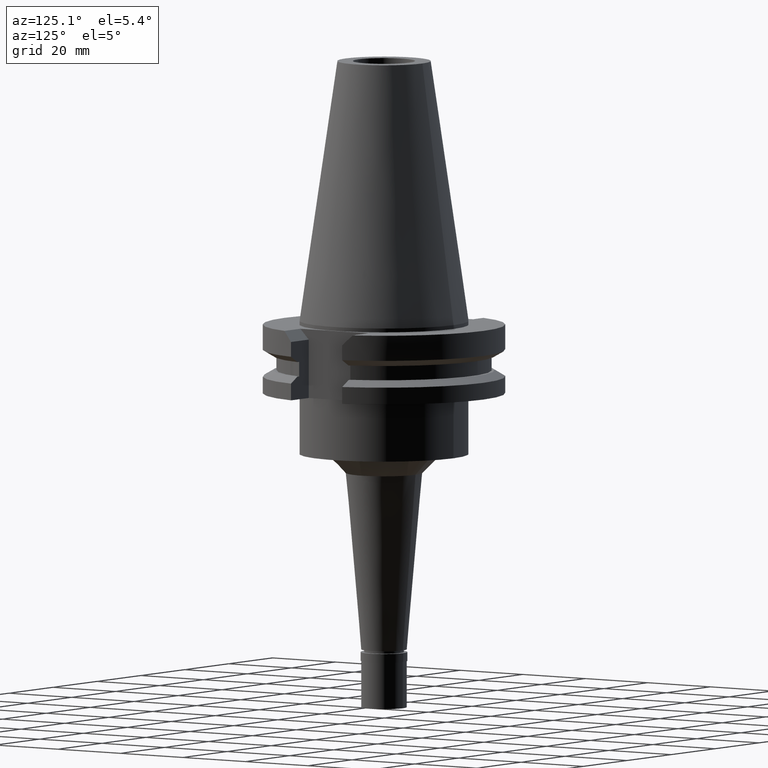
[diagram: clean part render]
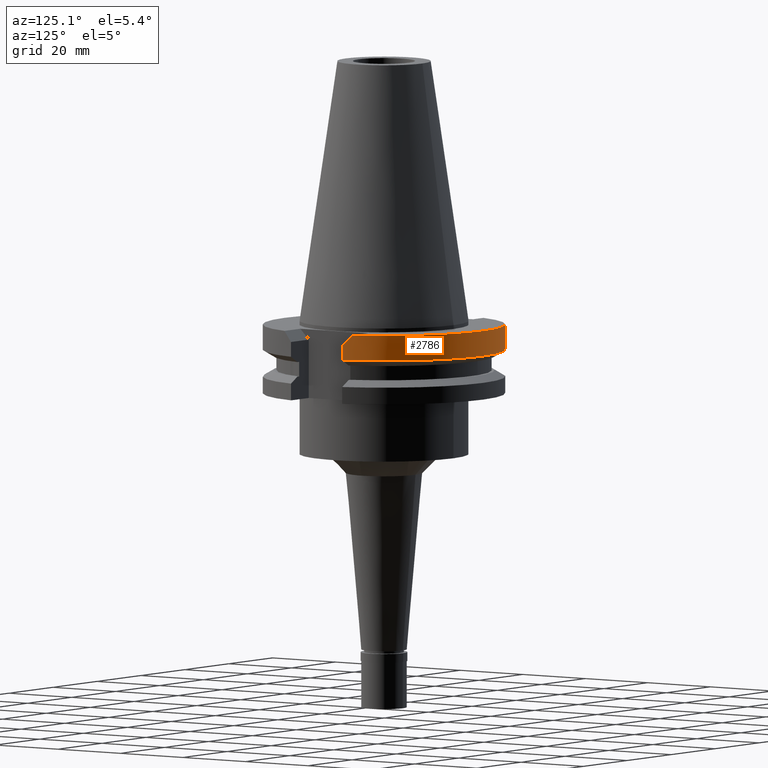
[diagram: same view with one face highlighted and labeled with its STEP entity id]
A machine part, auxiliary view. The second image highlights one B-rep face of the part: STEP entity #2786.
In plain terms, the highlighted cylindrical surface (partial cylindrical patch) has radius 31.75 mm, axis along (0, 0, -1).
Its self-contained STEP definition (entity closure, byte-faithful):
#48 = LINE ( 'NONE', #69, #2143 ) ;
#69 = CARTESIAN_POINT ( 'NONE',  ( -30.67550162588999640, 8.189999999999999503, -3.700000000000000178 ) ) ;
#93 = EDGE_CURVE ( 'NONE', #946, #1037, #2554, .T. ) ;
#100 = CARTESIAN_POINT ( 'NONE',  ( -30.14799306409551249, 10.00266721625513888, -1.887332783744861242 ) ) ;
#115 = CIRCLE ( 'NONE', #702, 31.74999999999998579 ) ;
#155 = CARTESIAN_POINT ( 'NONE',  ( 30.43183015827552040, 9.102667216255303728, -2.787332783744695064 ) ) ;
#167 = DIRECTION ( 'NONE',  ( 0.9661575315241073270, 0.2579527559055020958, 0.0000000000000000000 ) ) ;
#170 = CARTESIAN_POINT ( 'NONE',  ( -29.82399034335000110, 10.89000000000000057, -0.9999999999999000799 ) ) ;
#306 = CARTESIAN_POINT ( 'NONE',  ( 29.82399034335000110, 10.89000000000000057, -1.000000000001000089 ) ) ;
#391 = AXIS2_PLACEMENT_3D ( 'NONE', #2873, #686, #876 ) ;
#465 = VERTEX_POINT ( 'NONE', #697 ) ;
#506 = VERTEX_POINT ( 'NONE', #1789 ) ;
#541 = CARTESIAN_POINT ( 'NONE',  ( -30.67550162588999640, 8.189999999999999503, -3.700000000000000178 ) ) ;
#573 = B_SPLINE_CURVE_WITH_KNOTS ( 'NONE', 3,
 ( #1077, #100, #822, #541 ),
 .UNSPECIFIED., .F., .F.,
 ( 4, 4 ),
 ( 0.0000000000000000000, 1.000000000000000000 ),
 .UNSPECIFIED. ) ;
#635 = EDGE_LOOP ( 'NONE', ( #2069, #1866, #1072, #2652, #725, #2369 ) ) ;
#686 = DIRECTION ( 'NONE',  ( 0.0000000000000000000, 0.0000000000000000000, -1.000000000000000000 ) ) ;
#693 = DIRECTION ( 'NONE',  ( 0.0000000000000000000, 1.000000000000000000, 0.0000000000000000000 ) ) ;
#697 = CARTESIAN_POINT ( 'NONE',  ( 30.67550165946999741, 8.189999874245000200, -7.601334354722999898 ) ) ;
#702 = AXIS2_PLACEMENT_3D ( 'NONE', #1393, #2597, #167 ) ;
#707 = CYLINDRICAL_SURFACE ( 'NONE', #391, 31.75000000000000000 ) ;
#725 = ORIENTED_EDGE ( 'NONE', *, *, #747, .F. ) ;
#747 = EDGE_CURVE ( 'NONE', #2250, #1037, #2759, .T. ) ;
#822 = CARTESIAN_POINT ( 'NONE',  ( -30.43183015827551330, 9.102667216255303728, -2.787332783744695064 ) ) ;
#876 = DIRECTION ( 'NONE',  ( 0.0000000000000000000, -1.000000000000000000, 0.0000000000000000000 ) ) ;
#888 = CARTESIAN_POINT ( 'NONE',  ( -30.67550146398999900, 8.190000606402000116, -7.601327811762000231 ) ) ;
#933 = CARTESIAN_POINT ( 'NONE',  ( 0.0000000000000000000, 2.162022075384999775E-14, -0.9999999999999000799 ) ) ;
#946 = VERTEX_POINT ( 'NONE', #170 ) ;
#960 = VECTOR ( 'NONE', #2385, 1000.000000000000114 ) ;
#1037 = VERTEX_POINT ( 'NONE', #306 ) ;
#1068 = AXIS2_PLACEMENT_3D ( 'NONE', #933, #1161, #693 ) ;
#1072 = ORIENTED_EDGE ( 'NONE', *, *, #1544, .F. ) ;
#1077 = CARTESIAN_POINT ( 'NONE',  ( -29.82399034335000110, 10.89000000000000057, -0.9999999999999000799 ) ) ;
#1107 = DIRECTION ( 'NONE',  ( 4.149916090633944595E-08, 1.554348152346979594E-07, -0.9999999999999870104 ) ) ;
#1161 = DIRECTION ( 'NONE',  ( 0.0000000000000000000, 0.0000000000000000000, -1.000000000000000000 ) ) ;
#1393 = CARTESIAN_POINT ( 'NONE',  ( 0.0000000000000000000, 1.121722380078999823E-14, -7.601333230925999551 ) ) ;
#1544 = EDGE_CURVE ( 'NONE', #946, #506, #573, .T. ) ;
#1615 = EDGE_CURVE ( 'NONE', #465, #2250, #1882, .T. ) ;
#1698 = EDGE_CURVE ( 'NONE', #465, #3185, #115, .T. ) ;
#1789 = CARTESIAN_POINT ( 'NONE',  ( -30.67550162588999640, 8.189999999999999503, -3.700000000000000178 ) ) ;
#1866 = ORIENTED_EDGE ( 'NONE', *, *, #3100, .F. ) ;
#1882 = LINE ( 'NONE', #3061, #960 ) ;
#1899 = FACE_OUTER_BOUND ( 'NONE', #635, .T. ) ;
#2069 = ORIENTED_EDGE ( 'NONE', *, *, #1698, .T. ) ;
#2072 = CARTESIAN_POINT ( 'NONE',  ( 30.67550162588999640, 8.189999999999999503, -3.700000000000000178 ) ) ;
#2143 = VECTOR ( 'NONE', #1107, 1000.000000000000227 ) ;
#2250 = VERTEX_POINT ( 'NONE', #2072 ) ;
#2369 = ORIENTED_EDGE ( 'NONE', *, *, #1615, .F. ) ;
#2385 = DIRECTION ( 'NONE',  ( -8.606188922373994897E-09, 3.223388540172998788E-08, 0.9999999999999994449 ) ) ;
#2554 = CIRCLE ( 'NONE', #1068, 31.75000000000000000 ) ;
#2597 = DIRECTION ( 'NONE',  ( 0.0000000000000000000, 0.0000000000000000000, 1.000000000000000000 ) ) ;
#2652 = ORIENTED_EDGE ( 'NONE', *, *, #93, .T. ) ;
#2759 = B_SPLINE_CURVE_WITH_KNOTS ( 'NONE', 3,
 ( #3048, #155, #2862, #2827 ),
 .UNSPECIFIED., .F., .F.,
 ( 4, 4 ),
 ( 0.0000000000000000000, 1.000000000000000000 ),
 .UNSPECIFIED. ) ;
#2786 = ADVANCED_FACE ( 'NONE', ( #1899 ), #707, .T. ) ;
#2827 = CARTESIAN_POINT ( 'NONE',  ( 29.82399034335000110, 10.89000000000000057, -1.000000000001000089 ) ) ;
#2862 = CARTESIAN_POINT ( 'NONE',  ( 30.14799306409551960, 10.00266721625513888, -1.887332783744861242 ) ) ;
#2873 = CARTESIAN_POINT ( 'NONE',  ( 0.0000000000000000000, 2.162022075384999775E-14, 76.54250000000000398 ) ) ;
#3048 = CARTESIAN_POINT ( 'NONE',  ( 30.67550162588999640, 8.189999999999999503, -3.700000000000000178 ) ) ;
#3061 = CARTESIAN_POINT ( 'NONE',  ( 30.67550165946999741, 8.189999874245000200, -7.601334354722999898 ) ) ;
#3100 = EDGE_CURVE ( 'NONE', #506, #3185, #48, .T. ) ;
#3185 = VERTEX_POINT ( 'NONE', #888 ) ;